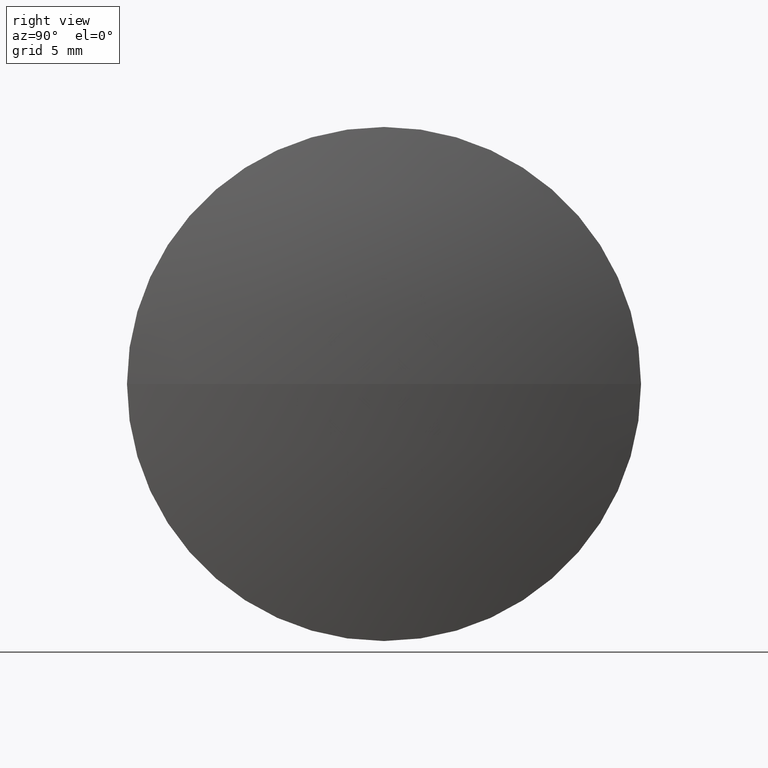
[diagram: clean part render]
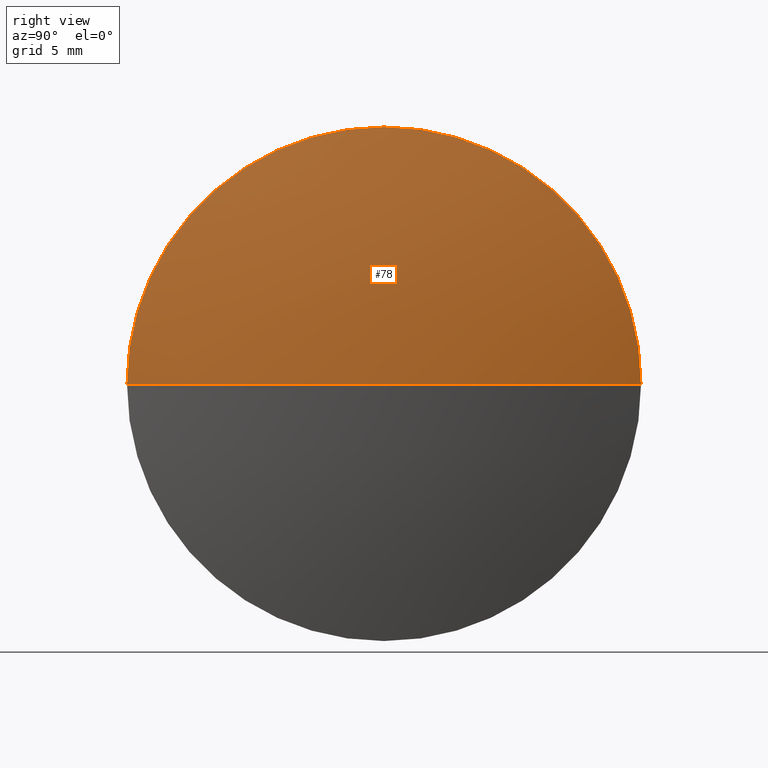
[diagram: same view with one face highlighted and labeled with its STEP entity id]
A machine part, right view. The second image highlights one B-rep face of the part: STEP entity #78.
In plain terms, the highlighted spherical surface has radius 55.2311 mm.
Its self-contained STEP definition (entity closure, byte-faithful):
#4 = ORIENTED_EDGE ( 'NONE', *, *, #168, .F. ) ;
#9 = DIRECTION ( 'NONE',  ( 0.0000000000000000000, 0.0000000000000000000, 1.000000000000000000 ) ) ;
#30 = EDGE_LOOP ( 'NONE', ( #129, #275, #4, #110 ) ) ;
#53 = VERTEX_POINT ( 'NONE', #215 ) ;
#56 = CARTESIAN_POINT ( 'NONE',  ( 33.20710706859297500, 48.61611302318480200, 0.0000000000000000000 ) ) ;
#57 = DIRECTION ( 'NONE',  ( 0.0000000000000000000, 0.0000000000000000000, 1.000000000000000000 ) ) ;
#60 = DIRECTION ( 'NONE',  ( 0.0000000000000000000, 0.0000000000000000000, -1.000000000000000000 ) ) ;
#66 = AXIS2_PLACEMENT_3D ( 'NONE', #296, #139, #57 ) ;
#71 = VERTEX_POINT ( 'NONE', #318 ) ;
#74 = AXIS2_PLACEMENT_3D ( 'NONE', #272, #190, #9 ) ;
#78 = ADVANCED_FACE ( 'NONE', ( #310 ), #188, .T. ) ;
#99 = CIRCLE ( 'NONE', #125, 55.23105299178385500 ) ;
#102 = VERTEX_POINT ( 'NONE', #221 ) ;
#107 = CARTESIAN_POINT ( 'NONE',  ( 33.20710706859297500, 48.61611302318480200, 0.0000000000000000000 ) ) ;
#110 = ORIENTED_EDGE ( 'NONE', *, *, #266, .F. ) ;
#111 = CARTESIAN_POINT ( 'NONE',  ( 33.20710706859297500, 48.61611302318480200, 0.0000000000000000000 ) ) ;
#125 = AXIS2_PLACEMENT_3D ( 'NONE', #111, #169, #227 ) ;
#129 = ORIENTED_EDGE ( 'NONE', *, *, #186, .F. ) ;
#139 = DIRECTION ( 'NONE',  ( -1.000000000000000000, -0.0000000000000000000, -0.0000000000000000000 ) ) ;
#144 = AXIS2_PLACEMENT_3D ( 'NONE', #56, #60, #225 ) ;
#150 = CIRCLE ( 'NONE', #144, 55.23105299178385500 ) ;
#166 = CARTESIAN_POINT ( 'NONE',  ( 86.95819277466255000, 48.61611302318478100, 12.69999999999999600 ) ) ;
#168 = EDGE_CURVE ( 'NONE', #321, #53, #238, .T. ) ;
#169 = DIRECTION ( 'NONE',  ( 0.0000000000000000000, -1.224646799147353200E-016, 1.000000000000000000 ) ) ;
#186 = EDGE_CURVE ( 'NONE', #102, #71, #150, .T. ) ;
#187 = DIRECTION ( 'NONE',  ( 0.0000000000000000000, 0.0000000000000000000, 1.000000000000000000 ) ) ;
#188 = SPHERICAL_SURFACE ( 'NONE', #226, 55.23105299178385500 ) ;
#190 = DIRECTION ( 'NONE',  ( -1.000000000000000000, -0.0000000000000000000, -0.0000000000000000000 ) ) ;
#215 = CARTESIAN_POINT ( 'NONE',  ( 86.95819277466255000, 61.31611302318478400, 1.555301434917136300E-015 ) ) ;
#216 = CIRCLE ( 'NONE', #66, 12.69999999999999600 ) ;
#221 = CARTESIAN_POINT ( 'NONE',  ( 88.43816006037683100, 48.61611302318480200, 0.0000000000000000000 ) ) ;
#225 = DIRECTION ( 'NONE',  ( -1.000000000000000000, 0.0000000000000000000, 0.0000000000000000000 ) ) ;
#226 = AXIS2_PLACEMENT_3D ( 'NONE', #107, #187, #320 ) ;
#227 = DIRECTION ( 'NONE',  ( 0.0000000000000000000, -1.000000000000000000, -1.224646799147353000E-016 ) ) ;
#238 = CIRCLE ( 'NONE', #74, 12.69999999999999600 ) ;
#265 = EDGE_CURVE ( 'NONE', #102, #53, #99, .T. ) ;
#266 = EDGE_CURVE ( 'NONE', #71, #321, #216, .T. ) ;
#272 = CARTESIAN_POINT ( 'NONE',  ( 86.95819277466255000, 48.61611302318478100, 0.0000000000000000000 ) ) ;
#275 = ORIENTED_EDGE ( 'NONE', *, *, #265, .T. ) ;
#296 = CARTESIAN_POINT ( 'NONE',  ( 86.95819277466255000, 48.61611302318478100, 0.0000000000000000000 ) ) ;
#310 = FACE_OUTER_BOUND ( 'NONE', #30, .T. ) ;
#318 = CARTESIAN_POINT ( 'NONE',  ( 86.95819277466255000, 35.91611302318479900, 0.0000000000000000000 ) ) ;
#320 = DIRECTION ( 'NONE',  ( 0.0000000000000000000, -1.000000000000000000, 0.0000000000000000000 ) ) ;
#321 = VERTEX_POINT ( 'NONE', #166 ) ;